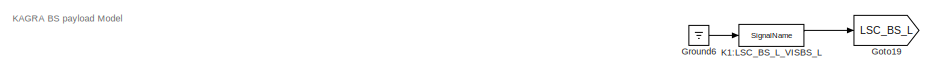
[diagram: root canvas - part 1/6, top left region]
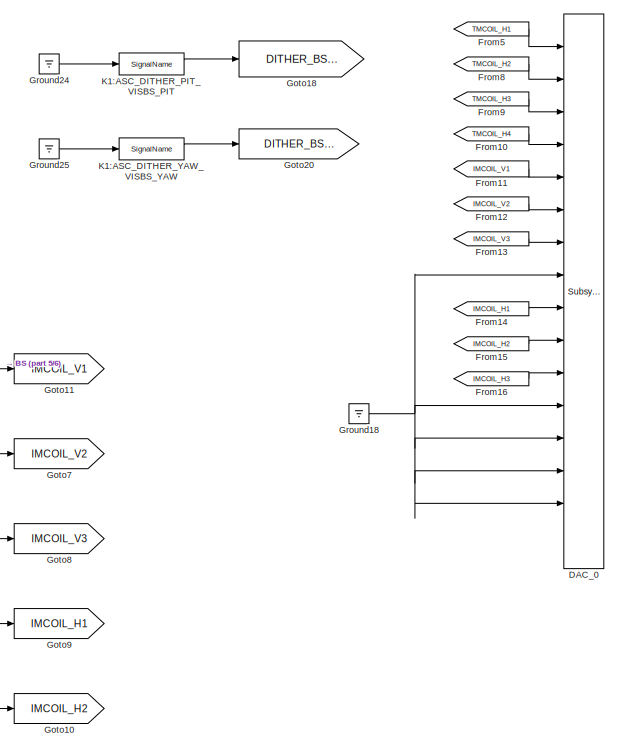
[diagram: root canvas - part 2/6, top right region]
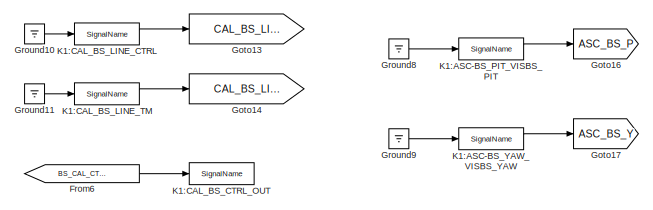
[diagram: root canvas - part 3/6, top center region]
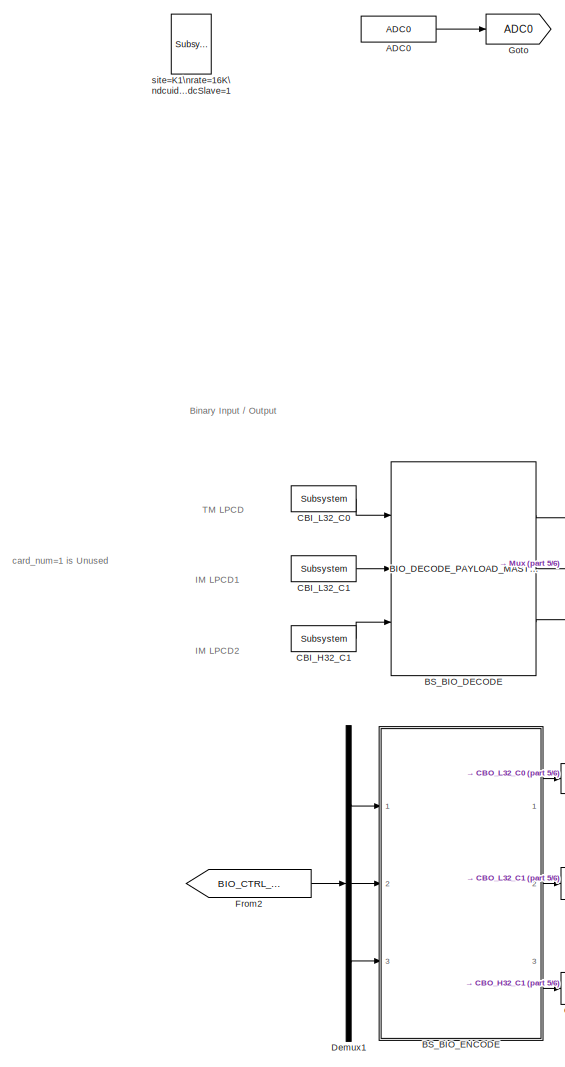
[diagram: root canvas - part 4/6, middle left region]
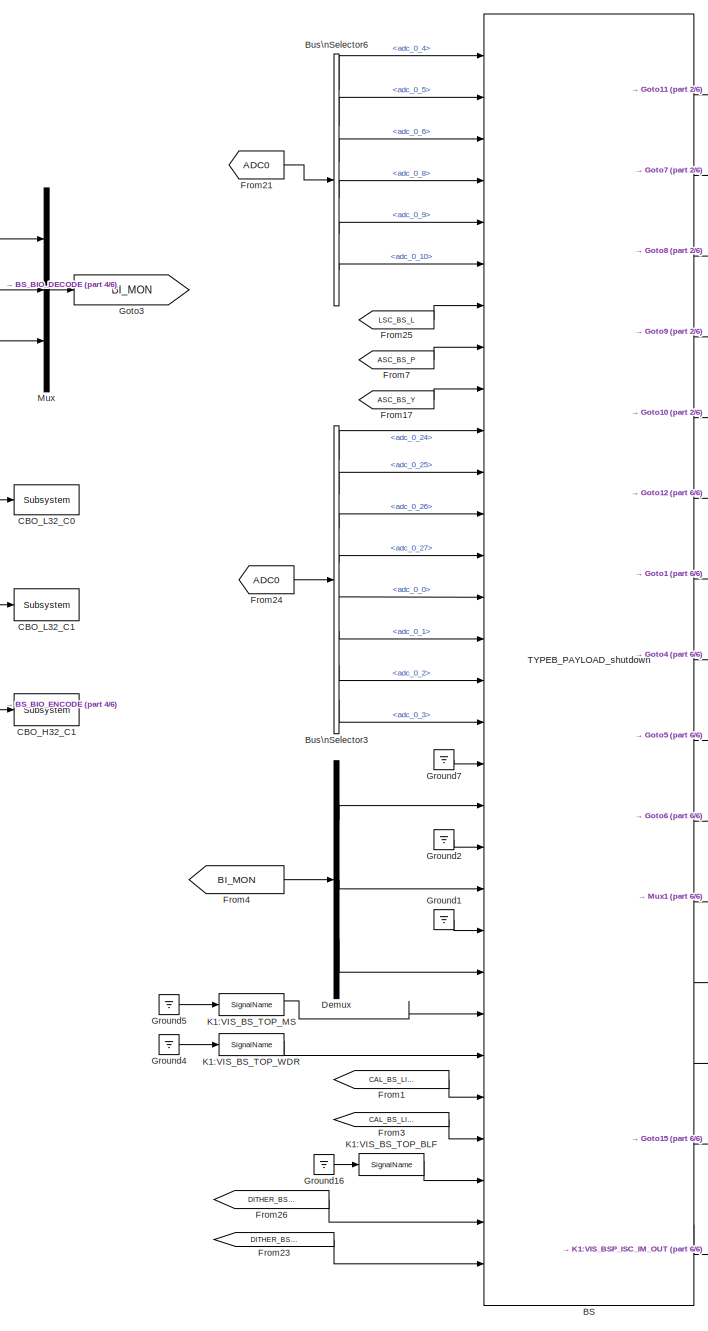
[diagram: root canvas - part 5/6, center side, full height]
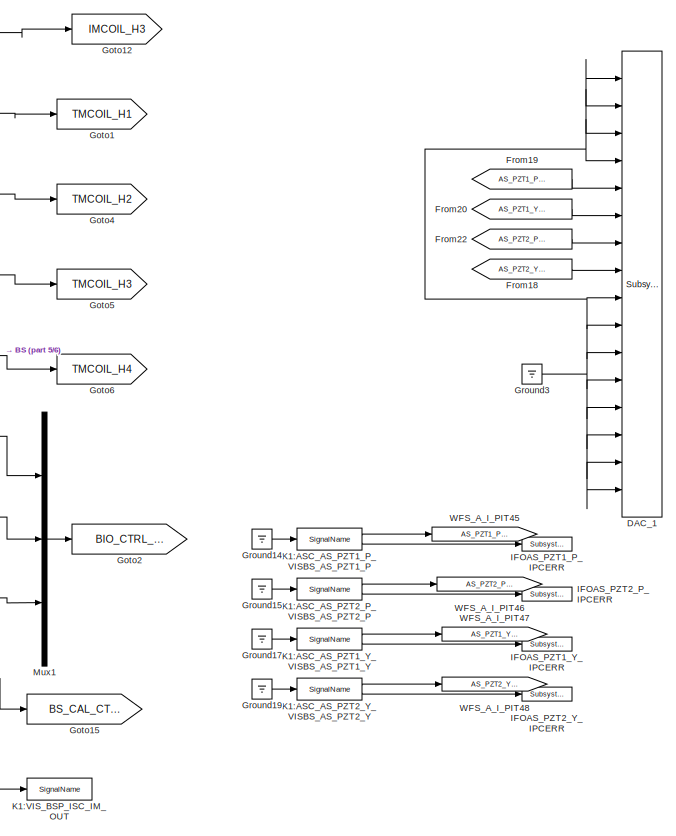
[diagram: root canvas - part 6/6, bottom right region]
MODEL k1visbsp
KIND model
BLOCK [Reference] ADC0  REF=cdsAdcx0/ADC0
  AttributesFormatString = %<Description>\\n%<Tag>
  Description = type-GSC_16AI64SSA\ncard_num=0
  Ports = [0, 1]
  SID = 271
  SourceBlock = cdsAdcx0/ADC0
  SourceType = SubSystem
  Tag = cdsAdc
BLOCK [Reference] BS  REF=TYPEB_MASTER/TYPEB_PAYLOAD_shutdown
  Ports = [30, 15]
  SID = 2206
  SourceBlock = TYPEB_MASTER/TYPEB_PAYLOAD_shutdown
  SourceType = SubSystem
BLOCK [Reference] BS_BIO_DECODE  REF=TYPEB_MASTER/BIO_DECODE_PAYLOAD_MASTER
  Ports = [3, 3]
  SID = 2204
  SourceBlock = TYPEB_MASTER/BIO_DECODE_PAYLOAD_MASTER
  SourceType = SubSystem
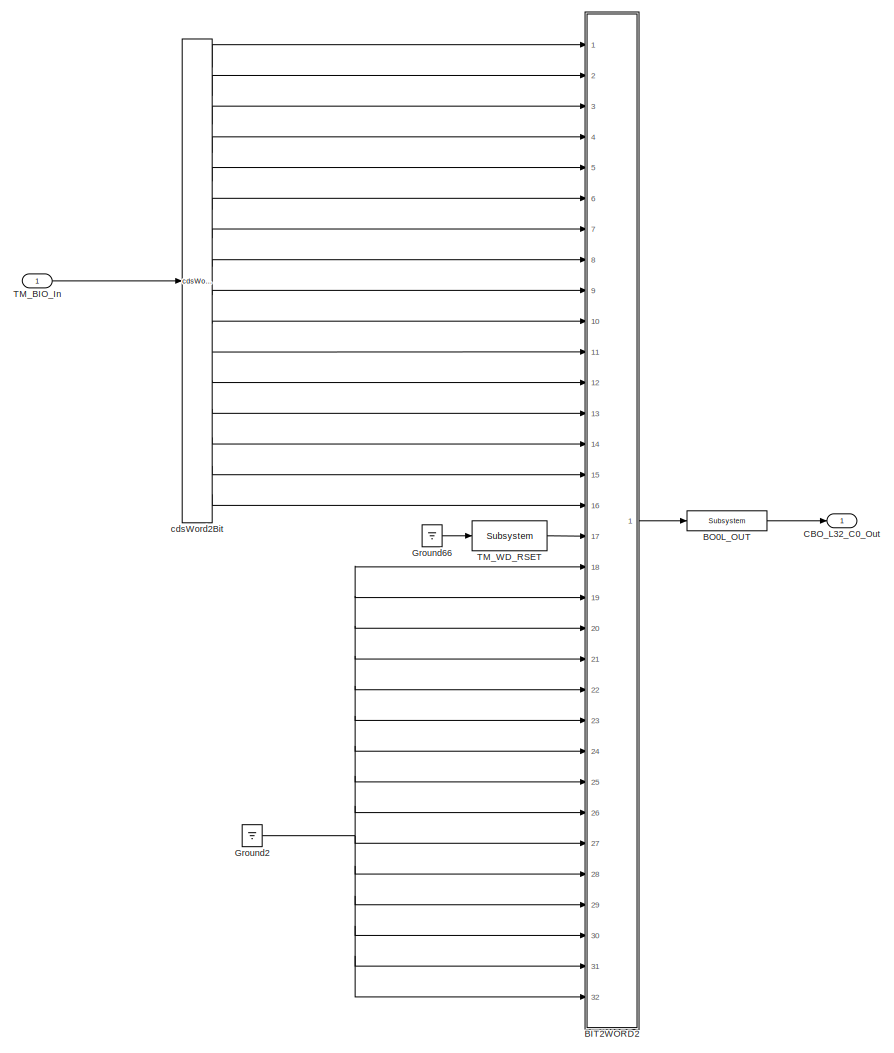
[diagram: BS_BIO_ENCODE - part 1/3, top left region]
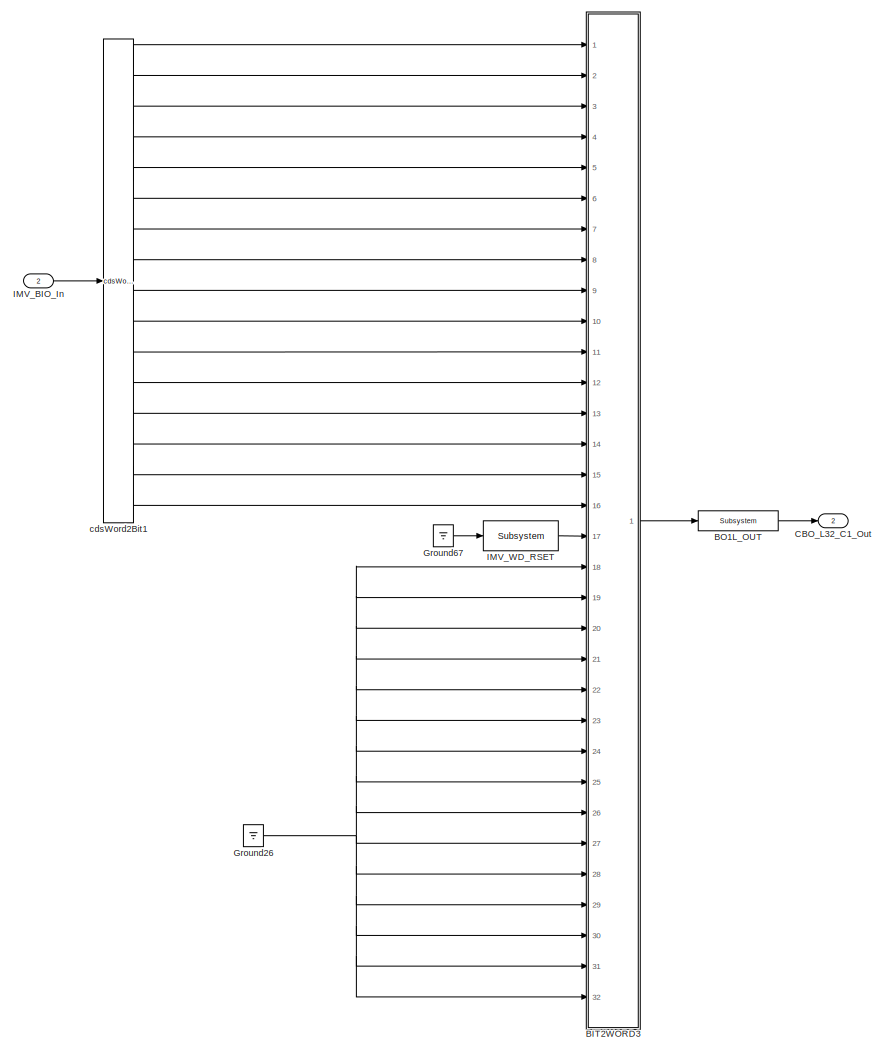
[diagram: BS_BIO_ENCODE - part 2/3, top right region]
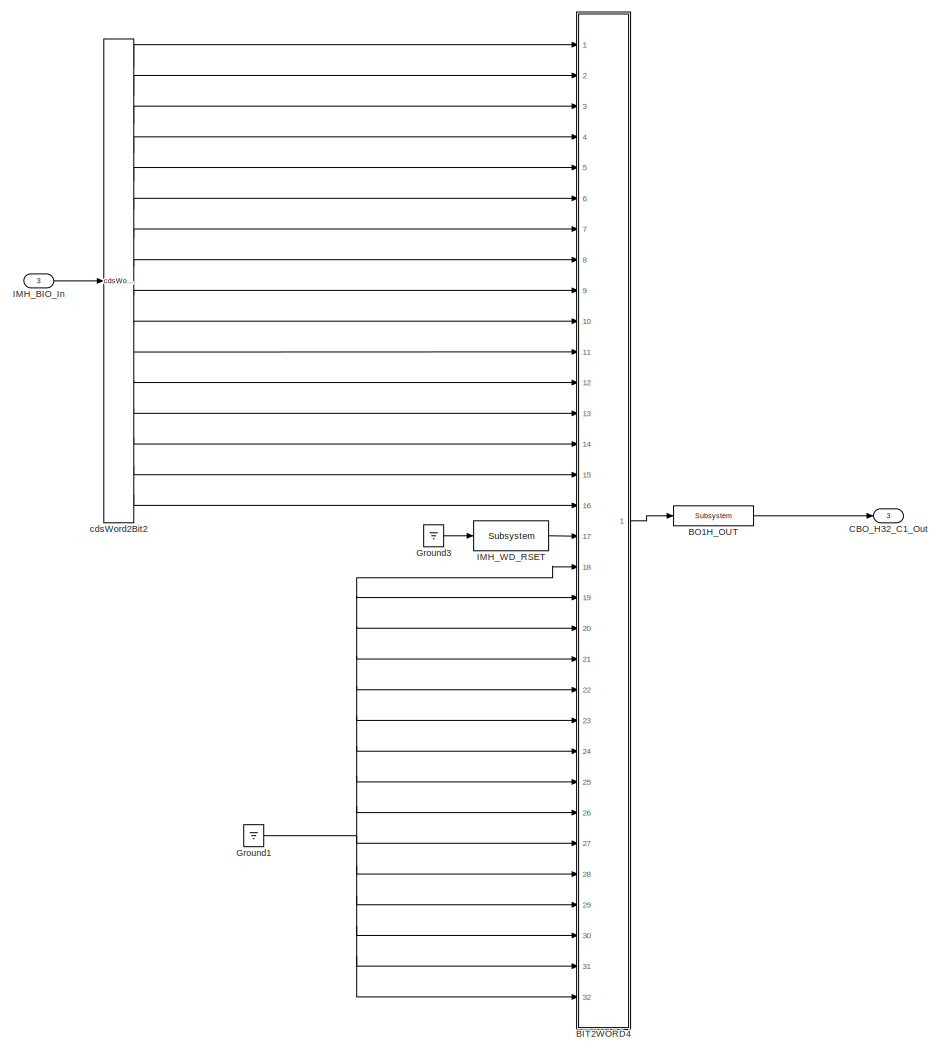
[diagram: BS_BIO_ENCODE - part 3/3, bottom left region]
BLOCK [SubSystem] BS_BIO_ENCODE
  AncestorBlock = TYPEB_MASTER/BIO_ENCODE_PAYLOAD_MASTER
  Ports = [3, 3]
  RequestExecContextInheritance = off
  SID = 2205
  Variant = off
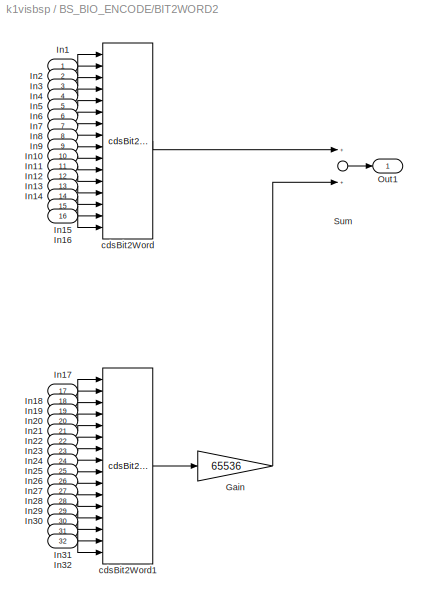
BLOCK [SubSystem] BS_BIO_ENCODE/BIT2WORD2
  Ports = [32, 1]
  RequestExecContextInheritance = off
  SID = 2205:1318
  Variant = off
BLOCK [Gain] BS_BIO_ENCODE/BIT2WORD2/Gain
  Gain = 65536
  OutDataTypeStr = Inherit: Inherit via internal rule
  ParamDataTypeStr = Inherit: Inherit via internal rule
  SID = 2205:1351
  SaturateOnIntegerOverflow = off
BLOCK [Inport] BS_BIO_ENCODE/BIT2WORD2/In1
  IconDisplay = Port number
  SID = 2205:1319
BLOCK [Inport] BS_BIO_ENCODE/BIT2WORD2/In10
  IconDisplay = Port number
  Port = 10
  SID = 2205:1328
BLOCK [Inport] BS_BIO_ENCODE/BIT2WORD2/In11
  IconDisplay = Port number
  Port = 11
  SID = 2205:1329
BLOCK [Inport] BS_BIO_ENCODE/BIT2WORD2/In12
  IconDisplay = Port number
  Port = 12
  SID = 2205:1330
BLOCK [Inport] BS_BIO_ENCODE/BIT2WORD2/In13
  IconDisplay = Port number
  Port = 13
  SID = 2205:1331
BLOCK [Inport] BS_BIO_ENCODE/BIT2WORD2/In14
  IconDisplay = Port number
  Port = 14
  SID = 2205:1332
BLOCK [Inport] BS_BIO_ENCODE/BIT2WORD2/In15
  IconDisplay = Port number
  Port = 15
  SID = 2205:1333
BLOCK [Inport] BS_BIO_ENCODE/BIT2WORD2/In16
  IconDisplay = Port number
  Port = 16
  SID = 2205:1334
BLOCK [Inport] BS_BIO_ENCODE/BIT2WORD2/In17
  IconDisplay = Port number
  Port = 17
  SID = 2205:1335
BLOCK [Inport] BS_BIO_ENCODE/BIT2WORD2/In18
  IconDisplay = Port number
  Port = 18
  SID = 2205:1336
BLOCK [Inport] BS_BIO_ENCODE/BIT2WORD2/In19
  IconDisplay = Port number
  Port = 19
  SID = 2205:1337
BLOCK [Inport] BS_BIO_ENCODE/BIT2WORD2/In2
  IconDisplay = Port number
  Port = 2
  SID = 2205:1320
BLOCK [Inport] BS_BIO_ENCODE/BIT2WORD2/In20
  IconDisplay = Port number
  Port = 20
  SID = 2205:1338
BLOCK [Inport] BS_BIO_ENCODE/BIT2WORD2/In21
  IconDisplay = Port number
  Port = 21
  SID = 2205:1339
BLOCK [Inport] BS_BIO_ENCODE/BIT2WORD2/In22
  IconDisplay = Port number
  Port = 22
  SID = 2205:1340
BLOCK [Inport] BS_BIO_ENCODE/BIT2WORD2/In23
  IconDisplay = Port number
  Port = 23
  SID = 2205:1341
BLOCK [Inport] BS_BIO_ENCODE/BIT2WORD2/In24
  IconDisplay = Port number
  Port = 24
  SID = 2205:1342
BLOCK [Inport] BS_BIO_ENCODE/BIT2WORD2/In25
  IconDisplay = Port number
  Port = 25
  SID = 2205:1343
BLOCK [Inport] BS_BIO_ENCODE/BIT2WORD2/In26
  IconDisplay = Port number
  Port = 26
  SID = 2205:1344
BLOCK [Inport] BS_BIO_ENCODE/BIT2WORD2/In27
  IconDisplay = Port number
  Port = 27
  SID = 2205:1345
BLOCK [Inport] BS_BIO_ENCODE/BIT2WORD2/In28
  IconDisplay = Port number
  Port = 28
  SID = 2205:1346
BLOCK [Inport] BS_BIO_ENCODE/BIT2WORD2/In29
  IconDisplay = Port number
  Port = 29
  SID = 2205:1347
BLOCK [Inport] BS_BIO_ENCODE/BIT2WORD2/In3
  IconDisplay = Port number
  Port = 3
  SID = 2205:1321
BLOCK [Inport] BS_BIO_ENCODE/BIT2WORD2/In30
  IconDisplay = Port number
  Port = 30
  SID = 2205:1348
BLOCK [Inport] BS_BIO_ENCODE/BIT2WORD2/In31
  IconDisplay = Port number
  Port = 31
  SID = 2205:1349
BLOCK [Inport] BS_BIO_ENCODE/BIT2WORD2/In32
  IconDisplay = Port number
  Port = 32
  SID = 2205:1350
BLOCK [Inport] BS_BIO_ENCODE/BIT2WORD2/In4
  IconDisplay = Port number
  Port = 4
  SID = 2205:1322
BLOCK [Inport] BS_BIO_ENCODE/BIT2WORD2/In5
  IconDisplay = Port number
  Port = 5
  SID = 2205:1323
BLOCK [Inport] BS_BIO_ENCODE/BIT2WORD2/In6
  IconDisplay = Port number
  Port = 6
  SID = 2205:1324
BLOCK [Inport] BS_BIO_ENCODE/BIT2WORD2/In7
  IconDisplay = Port number
  Port = 7
  SID = 2205:1325
BLOCK [Inport] BS_BIO_ENCODE/BIT2WORD2/In8
  IconDisplay = Port number
  Port = 8
  SID = 2205:1326
BLOCK [Inport] BS_BIO_ENCODE/BIT2WORD2/In9
  IconDisplay = Port number
  Port = 9
  SID = 2205:1327
BLOCK [Outport] BS_BIO_ENCODE/BIT2WORD2/Out1
  IconDisplay = Port number
  SID = 2205:1355
BLOCK [Sum] BS_BIO_ENCODE/BIT2WORD2/Sum
  InputSameDT = off
  OutDataTypeStr = Inherit: Inherit via internal rule
  Ports = [2, 1]
  SID = 2205:1352
  SaturateOnIntegerOverflow = off
BLOCK [Reference] BS_BIO_ENCODE/BIT2WORD2/cdsBit2Word  REF=cdsBit2Word/cdsBit2Word
  AttributesFormatString = %<Tag>
  Description = Forms single 16 bit integer from 16 0/1 inputs.
  Ports = [16, 1]
  SID = 2205:1353
  SourceBlock = cdsBit2Word/cdsBit2Word
  SourceType = SubSystem
  Tag = cdsBit2Word
BLOCK [Reference] BS_BIO_ENCODE/BIT2WORD2/cdsBit2Word1  REF=cdsBit2Word/cdsBit2Word
  AttributesFormatString = %<Tag>
  Description = Forms single 16 bit integer from 16 0/1 inputs.
  Ports = [16, 1]
  SID = 2205:1354
  SourceBlock = cdsBit2Word/cdsBit2Word
  SourceType = SubSystem
  Tag = cdsBit2Word
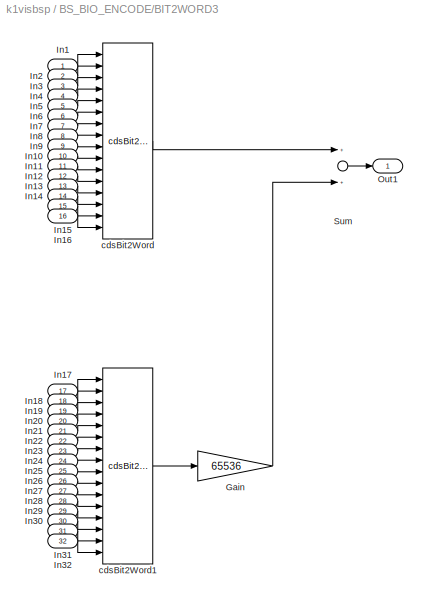
BLOCK [SubSystem] BS_BIO_ENCODE/BIT2WORD3
  Ports = [32, 1]
  RequestExecContextInheritance = off
  SID = 2205:1356
  Variant = off
BLOCK [Gain] BS_BIO_ENCODE/BIT2WORD3/Gain
  Gain = 65536
  OutDataTypeStr = Inherit: Inherit via internal rule
  ParamDataTypeStr = Inherit: Inherit via internal rule
  SID = 2205:1389
  SaturateOnIntegerOverflow = off
BLOCK [Inport] BS_BIO_ENCODE/BIT2WORD3/In1
  IconDisplay = Port number
  SID = 2205:1357
BLOCK [Inport] BS_BIO_ENCODE/BIT2WORD3/In10
  IconDisplay = Port number
  Port = 10
  SID = 2205:1366
BLOCK [Inport] BS_BIO_ENCODE/BIT2WORD3/In11
  IconDisplay = Port number
  Port = 11
  SID = 2205:1367
BLOCK [Inport] BS_BIO_ENCODE/BIT2WORD3/In12
  IconDisplay = Port number
  Port = 12
  SID = 2205:1368
BLOCK [Inport] BS_BIO_ENCODE/BIT2WORD3/In13
  IconDisplay = Port number
  Port = 13
  SID = 2205:1369
BLOCK [Inport] BS_BIO_ENCODE/BIT2WORD3/In14
  IconDisplay = Port number
  Port = 14
  SID = 2205:1370
BLOCK [Inport] BS_BIO_ENCODE/BIT2WORD3/In15
  IconDisplay = Port number
  Port = 15
  SID = 2205:1371
BLOCK [Inport] BS_BIO_ENCODE/BIT2WORD3/In16
  IconDisplay = Port number
  Port = 16
  SID = 2205:1372
BLOCK [Inport] BS_BIO_ENCODE/BIT2WORD3/In17
  IconDisplay = Port number
  Port = 17
  SID = 2205:1373
BLOCK [Inport] BS_BIO_ENCODE/BIT2WORD3/In18
  IconDisplay = Port number
  Port = 18
  SID = 2205:1374
BLOCK [Inport] BS_BIO_ENCODE/BIT2WORD3/In19
  IconDisplay = Port number
  Port = 19
  SID = 2205:1375
BLOCK [Inport] BS_BIO_ENCODE/BIT2WORD3/In2
  IconDisplay = Port number
  Port = 2
  SID = 2205:1358
BLOCK [Inport] BS_BIO_ENCODE/BIT2WORD3/In20
  IconDisplay = Port number
  Port = 20
  SID = 2205:1376
BLOCK [Inport] BS_BIO_ENCODE/BIT2WORD3/In21
  IconDisplay = Port number
  Port = 21
  SID = 2205:1377
BLOCK [Inport] BS_BIO_ENCODE/BIT2WORD3/In22
  IconDisplay = Port number
  Port = 22
  SID = 2205:1378
BLOCK [Inport] BS_BIO_ENCODE/BIT2WORD3/In23
  IconDisplay = Port number
  Port = 23
  SID = 2205:1379
BLOCK [Inport] BS_BIO_ENCODE/BIT2WORD3/In24
  IconDisplay = Port number
  Port = 24
  SID = 2205:1380
BLOCK [Inport] BS_BIO_ENCODE/BIT2WORD3/In25
  IconDisplay = Port number
  Port = 25
  SID = 2205:1381
BLOCK [Inport] BS_BIO_ENCODE/BIT2WORD3/In26
  IconDisplay = Port number
  Port = 26
  SID = 2205:1382
BLOCK [Inport] BS_BIO_ENCODE/BIT2WORD3/In27
  IconDisplay = Port number
  Port = 27
  SID = 2205:1383
BLOCK [Inport] BS_BIO_ENCODE/BIT2WORD3/In28
  IconDisplay = Port number
  Port = 28
  SID = 2205:1384
BLOCK [Inport] BS_BIO_ENCODE/BIT2WORD3/In29
  IconDisplay = Port number
  Port = 29
  SID = 2205:1385
BLOCK [Inport] BS_BIO_ENCODE/BIT2WORD3/In3
  IconDisplay = Port number
  Port = 3
  SID = 2205:1359
BLOCK [Inport] BS_BIO_ENCODE/BIT2WORD3/In30
  IconDisplay = Port number
  Port = 30
  SID = 2205:1386
BLOCK [Inport] BS_BIO_ENCODE/BIT2WORD3/In31
  IconDisplay = Port number
  Port = 31
  SID = 2205:1387
BLOCK [Inport] BS_BIO_ENCODE/BIT2WORD3/In32
  IconDisplay = Port number
  Port = 32
  SID = 2205:1388
BLOCK [Inport] BS_BIO_ENCODE/BIT2WORD3/In4
  IconDisplay = Port number
  Port = 4
  SID = 2205:1360
BLOCK [Inport] BS_BIO_ENCODE/BIT2WORD3/In5
  IconDisplay = Port number
  Port = 5
  SID = 2205:1361
BLOCK [Inport] BS_BIO_ENCODE/BIT2WORD3/In6
  IconDisplay = Port number
  Port = 6
  SID = 2205:1362
BLOCK [Inport] BS_BIO_ENCODE/BIT2WORD3/In7
  IconDisplay = Port number
  Port = 7
  SID = 2205:1363
BLOCK [Inport] BS_BIO_ENCODE/BIT2WORD3/In8
  IconDisplay = Port number
  Port = 8
  SID = 2205:1364
BLOCK [Inport] BS_BIO_ENCODE/BIT2WORD3/In9
  IconDisplay = Port number
  Port = 9
  SID = 2205:1365
BLOCK [Outport] BS_BIO_ENCODE/BIT2WORD3/Out1
  IconDisplay = Port number
  SID = 2205:1393
BLOCK [Sum] BS_BIO_ENCODE/BIT2WORD3/Sum
  InputSameDT = off
  OutDataTypeStr = Inherit: Inherit via internal rule
  Ports = [2, 1]
  SID = 2205:1390
  SaturateOnIntegerOverflow = off
BLOCK [Reference] BS_BIO_ENCODE/BIT2WORD3/cdsBit2Word  REF=cdsBit2Word/cdsBit2Word
  AttributesFormatString = %<Tag>
  Description = Forms single 16 bit integer from 16 0/1 inputs.
  Ports = [16, 1]
  SID = 2205:1391
  SourceBlock = cdsBit2Word/cdsBit2Word
  SourceType = SubSystem
  Tag = cdsBit2Word
BLOCK [Reference] BS_BIO_ENCODE/BIT2WORD3/cdsBit2Word1  REF=cdsBit2Word/cdsBit2Word
  AttributesFormatString = %<Tag>
  Description = Forms single 16 bit integer from 16 0/1 inputs.
  Ports = [16, 1]
  SID = 2205:1392
  SourceBlock = cdsBit2Word/cdsBit2Word
  SourceType = SubSystem
  Tag = cdsBit2Word
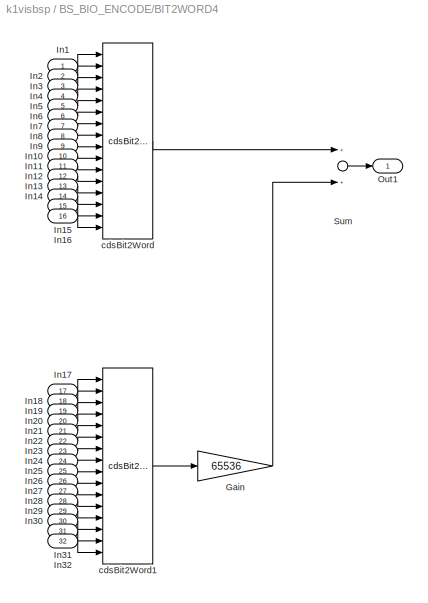
BLOCK [SubSystem] BS_BIO_ENCODE/BIT2WORD4
  Ports = [32, 1]
  RequestExecContextInheritance = off
  SID = 2205:1394
  Variant = off
BLOCK [Gain] BS_BIO_ENCODE/BIT2WORD4/Gain
  Gain = 65536
  OutDataTypeStr = Inherit: Inherit via internal rule
  ParamDataTypeStr = Inherit: Inherit via internal rule
  SID = 2205:1427
  SaturateOnIntegerOverflow = off
BLOCK [Inport] BS_BIO_ENCODE/BIT2WORD4/In1
  IconDisplay = Port number
  SID = 2205:1395
BLOCK [Inport] BS_BIO_ENCODE/BIT2WORD4/In10
  IconDisplay = Port number
  Port = 10
  SID = 2205:1404
BLOCK [Inport] BS_BIO_ENCODE/BIT2WORD4/In11
  IconDisplay = Port number
  Port = 11
  SID = 2205:1405
BLOCK [Inport] BS_BIO_ENCODE/BIT2WORD4/In12
  IconDisplay = Port number
  Port = 12
  SID = 2205:1406
BLOCK [Inport] BS_BIO_ENCODE/BIT2WORD4/In13
  IconDisplay = Port number
  Port = 13
  SID = 2205:1407
BLOCK [Inport] BS_BIO_ENCODE/BIT2WORD4/In14
  IconDisplay = Port number
  Port = 14
  SID = 2205:1408
BLOCK [Inport] BS_BIO_ENCODE/BIT2WORD4/In15
  IconDisplay = Port number
  Port = 15
  SID = 2205:1409
BLOCK [Inport] BS_BIO_ENCODE/BIT2WORD4/In16
  IconDisplay = Port number
  Port = 16
  SID = 2205:1410
BLOCK [Inport] BS_BIO_ENCODE/BIT2WORD4/In17
  IconDisplay = Port number
  Port = 17
  SID = 2205:1411
BLOCK [Inport] BS_BIO_ENCODE/BIT2WORD4/In18
  IconDisplay = Port number
  Port = 18
  SID = 2205:1412
BLOCK [Inport] BS_BIO_ENCODE/BIT2WORD4/In19
  IconDisplay = Port number
  Port = 19
  SID = 2205:1413
BLOCK [Inport] BS_BIO_ENCODE/BIT2WORD4/In2
  IconDisplay = Port number
  Port = 2
  SID = 2205:1396
BLOCK [Inport] BS_BIO_ENCODE/BIT2WORD4/In20
  IconDisplay = Port number
  Port = 20
  SID = 2205:1414
BLOCK [Inport] BS_BIO_ENCODE/BIT2WORD4/In21
  IconDisplay = Port number
  Port = 21
  SID = 2205:1415
BLOCK [Inport] BS_BIO_ENCODE/BIT2WORD4/In22
  IconDisplay = Port number
  Port = 22
  SID = 2205:1416
BLOCK [Inport] BS_BIO_ENCODE/BIT2WORD4/In23
  IconDisplay = Port number
  Port = 23
  SID = 2205:1417
BLOCK [Inport] BS_BIO_ENCODE/BIT2WORD4/In24
  IconDisplay = Port number
  Port = 24
  SID = 2205:1418
BLOCK [Inport] BS_BIO_ENCODE/BIT2WORD4/In25
  IconDisplay = Port number
  Port = 25
  SID = 2205:1419
BLOCK [Inport] BS_BIO_ENCODE/BIT2WORD4/In26
  IconDisplay = Port number
  Port = 26
  SID = 2205:1420
BLOCK [Inport] BS_BIO_ENCODE/BIT2WORD4/In27
  IconDisplay = Port number
  Port = 27
  SID = 2205:1421
BLOCK [Inport] BS_BIO_ENCODE/BIT2WORD4/In28
  IconDisplay = Port number
  Port = 28
  SID = 2205:1422
BLOCK [Inport] BS_BIO_ENCODE/BIT2WORD4/In29
  IconDisplay = Port number
  Port = 29
  SID = 2205:1423
BLOCK [Inport] BS_BIO_ENCODE/BIT2WORD4/In3
  IconDisplay = Port number
  Port = 3
  SID = 2205:1397
BLOCK [Inport] BS_BIO_ENCODE/BIT2WORD4/In30
  IconDisplay = Port number
  Port = 30
  SID = 2205:1424
BLOCK [Inport] BS_BIO_ENCODE/BIT2WORD4/In31
  IconDisplay = Port number
  Port = 31
  SID = 2205:1425
BLOCK [Inport] BS_BIO_ENCODE/BIT2WORD4/In32
  IconDisplay = Port number
  Port = 32
  SID = 2205:1426
BLOCK [Inport] BS_BIO_ENCODE/BIT2WORD4/In4
  IconDisplay = Port number
  Port = 4
  SID = 2205:1398
BLOCK [Inport] BS_BIO_ENCODE/BIT2WORD4/In5
  IconDisplay = Port number
  Port = 5
  SID = 2205:1399
BLOCK [Inport] BS_BIO_ENCODE/BIT2WORD4/In6
  IconDisplay = Port number
  Port = 6
  SID = 2205:1400
BLOCK [Inport] BS_BIO_ENCODE/BIT2WORD4/In7
  IconDisplay = Port number
  Port = 7
  SID = 2205:1401
BLOCK [Inport] BS_BIO_ENCODE/BIT2WORD4/In8
  IconDisplay = Port number
  Port = 8
  SID = 2205:1402
BLOCK [Inport] BS_BIO_ENCODE/BIT2WORD4/In9
  IconDisplay = Port number
  Port = 9
  SID = 2205:1403
BLOCK [Outport] BS_BIO_ENCODE/BIT2WORD4/Out1
  IconDisplay = Port number
  SID = 2205:1431
BLOCK [Sum] BS_BIO_ENCODE/BIT2WORD4/Sum
  InputSameDT = off
  OutDataTypeStr = Inherit: Inherit via internal rule
  Ports = [2, 1]
  SID = 2205:1428
  SaturateOnIntegerOverflow = off
BLOCK [Reference] BS_BIO_ENCODE/BIT2WORD4/cdsBit2Word  REF=cdsBit2Word/cdsBit2Word
  AttributesFormatString = %<Tag>
  Description = Forms single 16 bit integer from 16 0/1 inputs.
  Ports = [16, 1]
  SID = 2205:1429
  SourceBlock = cdsBit2Word/cdsBit2Word
  SourceType = SubSystem
  Tag = cdsBit2Word
BLOCK [Reference] BS_BIO_ENCODE/BIT2WORD4/cdsBit2Word1  REF=cdsBit2Word/cdsBit2Word
  AttributesFormatString = %<Tag>
  Description = Forms single 16 bit integer from 16 0/1 inputs.
  Ports = [16, 1]
  SID = 2205:1430
  SourceBlock = cdsBit2Word/cdsBit2Word
  SourceType = SubSystem
  Tag = cdsBit2Word
BLOCK [Reference] BS_BIO_ENCODE/BO0L_OUT  REF=cdsEpicsOut/Subsystem
  AttributesFormatString = %<Tag>
  Description = Purpose:                                          \nOutput a FE signal to an EPICS channel.           \n                                                  \nOperation:                                        \nTakes input value and passes it to EPICS record.  \n                                                  \nUsage:                                            \nName the part with the desired EPICS...<+14ch>  <repeated x7 — deduplicated; at blocks: BO0L_OUT, BO1H_OUT, BO1L_OUT, IFOAS_PZT1_P_IPCERR, IFOAS_PZT1_Y_IPCERR, IFOAS_PZT2_P_IPCERR, IFOAS_PZT2_Y_IPCERR>
  Ports = [1, 1]
  SID = 2205:1432
  SourceBlock = cdsEpicsOut/Subsystem
  SourceType = SubSystem
  Tag = cdsEpicsOutput
BLOCK [Reference] BS_BIO_ENCODE/BO1H_OUT  REF=cdsEpicsOut/Subsystem
  AttributesFormatString = %<Tag>
  Ports = [1, 1]
  SID = 2205:1434
  SourceBlock = cdsEpicsOut/Subsystem
  SourceType = SubSystem
  Tag = cdsEpicsOutput
BLOCK [Reference] BS_BIO_ENCODE/BO1L_OUT  REF=cdsEpicsOut/Subsystem
  AttributesFormatString = %<Tag>
  Ports = [1, 1]
  SID = 2205:1433
  SourceBlock = cdsEpicsOut/Subsystem
  SourceType = SubSystem
  Tag = cdsEpicsOutput
BLOCK [Outport] BS_BIO_ENCODE/CBO_H32_C1_Out
  IconDisplay = Port number
  Port = 3
  SID = 2205:1449
BLOCK [Outport] BS_BIO_ENCODE/CBO_L32_C0_Out
  IconDisplay = Port number
  SID = 2205:1447
BLOCK [Outport] BS_BIO_ENCODE/CBO_L32_C1_Out
  IconDisplay = Port number
  Port = 2
  SID = 2205:1448
BLOCK [Ground] BS_BIO_ENCODE/Ground1
  SID = 2205:1435
BLOCK [Ground] BS_BIO_ENCODE/Ground2
  SID = 2205:1436
BLOCK [Ground] BS_BIO_ENCODE/Ground26
  SID = 2205:1437
BLOCK [Ground] BS_BIO_ENCODE/Ground3
  SID = 2205:1438
BLOCK [Ground] BS_BIO_ENCODE/Ground66
  SID = 2205:1439
BLOCK [Ground] BS_BIO_ENCODE/Ground67
  SID = 2205:1440
BLOCK [Inport] BS_BIO_ENCODE/IMH_BIO_In
  IconDisplay = Port number
  Port = 3
  SID = 2205:1317
BLOCK [Reference] BS_BIO_ENCODE/IMH_WD_RSET  REF=cdsEpicsBinIn/Subsystem
  AttributesFormatString = %<Tag>
  Description = Purpose:                                                                            \nCreate an EPICS binary (0 or 1) input channel to the FE realtime controls.          \n                                                                                    \nOperation:                                                                          \nOutputs value from an EPICS ai record. Value is binary i...<+252ch>  <repeated x3 — deduplicated; at blocks: IMH_WD_RSET, IMV_WD_RSET, TM_WD_RSET>
  Ports = [1, 1]
  SID = 2205:1441
  SourceBlock = cdsEpicsBinIn/Subsystem
  SourceType = SubSystem
  Tag = cdsEpicsBinIn
BLOCK [Inport] BS_BIO_ENCODE/IMV_BIO_In
  IconDisplay = Port number
  Port = 2
  SID = 2205:1316
BLOCK [Reference] BS_BIO_ENCODE/IMV_WD_RSET  REF=cdsEpicsBinIn/Subsystem
  AttributesFormatString = %<Tag>
  Ports = [1, 1]
  SID = 2205:1442
  SourceBlock = cdsEpicsBinIn/Subsystem
  SourceType = SubSystem
  Tag = cdsEpicsBinIn
BLOCK [Inport] BS_BIO_ENCODE/TM_BIO_In
  IconDisplay = Port number
  SID = 2205:1315
BLOCK [Reference] BS_BIO_ENCODE/TM_WD_RSET  REF=cdsEpicsBinIn/Subsystem
  AttributesFormatString = %<Tag>
  Ports = [1, 1]
  SID = 2205:1443
  SourceBlock = cdsEpicsBinIn/Subsystem
  SourceType = SubSystem
  Tag = cdsEpicsBinIn
BLOCK [Reference] BS_BIO_ENCODE/cdsWord2Bit  REF=cdsWord2Bit/cdsWord2Bit
  AttributesFormatString = cdsWord2Bit
  Description = Generate 16 0/1 outputs from single 16-bit integer input
  Ports = [1, 16]
  SID = 2205:1444
  SourceBlock = cdsWord2Bit/cdsWord2Bit
  SourceType = SubSystem
  Tag = cdsWord2Bit
BLOCK [Reference] BS_BIO_ENCODE/cdsWord2Bit1  REF=cdsWord2Bit/cdsWord2Bit
  AttributesFormatString = cdsWord2Bit
  Description = Generate 16 0/1 outputs from single 16-bit integer input
  Ports = [1, 16]
  SID = 2205:1445
  SourceBlock = cdsWord2Bit/cdsWord2Bit
  SourceType = SubSystem
  Tag = cdsWord2Bit
BLOCK [Reference] BS_BIO_ENCODE/cdsWord2Bit2  REF=cdsWord2Bit/cdsWord2Bit
  AttributesFormatString = cdsWord2Bit
  Description = Generate 16 0/1 outputs from single 16-bit integer input
  Ports = [1, 16]
  SID = 2205:1446
  SourceBlock = cdsWord2Bit/cdsWord2Bit
  SourceType = SubSystem
  Tag = cdsWord2Bit
BLOCK [BusSelector] Bus\nSelector3
  AttributesFormatString = %<Description>
  Description = ADC Selector
  OutputSignals = adc_0_24,adc_0_25,adc_0_26,adc_0_27,adc_0_0,adc_0_1,adc_0_2,adc_0_3
  Ports = [1, 8]
  SID = 275
BLOCK [BusSelector] Bus\nSelector6
  AttributesFormatString = %<Description>
  Description = ADC Selector
  OutputSignals = adc_0_4,adc_0_5,adc_0_6,adc_0_8,adc_0_9,adc_0_10
  Ports = [1, 6]
  SID = 273
BLOCK [Reference] CBI_H32_C1  REF=cdsCDI64/Subsystem
  AttributesFormatString = %<Tag>\\n%<Description>
  Description = card_num=3
  Ports = [0, 1]
  SID = 2125
  SourceBlock = cdsCDI64/Subsystem
  SourceType = SubSystem
  Tag = cdsCDI64
BLOCK [Reference] CBI_L32_C0  REF=cdsCDI64/Subsystem
  AttributesFormatString = %<Tag>\\n%<Description>
  Description = card_num=0
  Ports = [0, 1]
  SID = 2126
  SourceBlock = cdsCDI64/Subsystem
  SourceType = SubSystem
  Tag = cdsCDI64
BLOCK [Reference] CBI_L32_C1  REF=cdsCDI64/Subsystem
  AttributesFormatString = %<Tag>\\n%<Description>
  Description = card_num=2
  Ports = [0, 1]
  SID = 2127
  SourceBlock = cdsCDI64/Subsystem
  SourceType = SubSystem
  Tag = cdsCDI64
BLOCK [Reference] CBO_H32_C1  REF=cdsCDO64/Subsystem
  AttributesFormatString = %<Tag>\\n%<Description>
  Description = card_num=3
  Ports = [1]
  SID = 2130
  SourceBlock = cdsCDO64/Subsystem
  SourceType = SubSystem
  Tag = cdsCDO64
BLOCK [Reference] CBO_L32_C0  REF=cdsCDO64/Subsystem
  AttributesFormatString = %<Tag>\\n%<Description>
  Description = card_num=0
  Ports = [1]
  SID = 2131
  SourceBlock = cdsCDO64/Subsystem
  SourceType = SubSystem
  Tag = cdsCDO64
BLOCK [Reference] CBO_L32_C1  REF=cdsCDO64/Subsystem
  AttributesFormatString = %<Tag>\\n%<Description>
  Description = card_num=2
  Ports = [1]
  SID = 2132
  SourceBlock = cdsCDO64/Subsystem
  SourceType = SubSystem
  Tag = cdsCDO64
BLOCK [Reference] DAC_0  REF=dac/Subsystem  (lib defined in slx_40ef132df75b, slx_b7657ccccc5b, +4 more)
  AttributesFormatString = %<Description>
  Description = type=GSC_16AO16,\ncard_num=0
  Ports = [16]
  SID = 350
  SourceBlock = dac/Subsystem
  SourceType = SubSystem
BLOCK [Reference] DAC_1  REF=dac/Subsystem  (lib defined in slx_40ef132df75b, slx_b7657ccccc5b, +4 more)
  AttributesFormatString = %<Description>
  Description = type=GSC_16AO16,\ncard_num=1
  Ports = [16]
  SID = 536
  SourceBlock = dac/Subsystem
  SourceType = SubSystem
BLOCK [Demux] Demux
  DisplayOption = bar
  Outputs = 3
  Ports = [1, 3]
  SID = 2148
BLOCK [Demux] Demux1
  DisplayOption = bar
  Outputs = 3
  Ports = [1, 3]
  SID = 2135
BLOCK [From] From1
  GotoTag = CAL_BS_LINE_CTRL
  SID = 2173
BLOCK [From] From10
  GotoTag = TMCOIL_H4
  SID = 351
BLOCK [From] From11
  GotoTag = IMCOIL_V1
  SID = 352
BLOCK [From] From12
  GotoTag = IMCOIL_V2
  SID = 353
BLOCK [From] From13
  GotoTag = IMCOIL_V3
  SID = 354
BLOCK [From] From14
  GotoTag = IMCOIL_H1
  SID = 355
BLOCK [From] From15
  GotoTag = IMCOIL_H2
  SID = 356
BLOCK [From] From16
  GotoTag = IMCOIL_H3
  SID = 357
BLOCK [From] From17
  GotoTag = ASC_BS_Y
  SID = 2225
BLOCK [From] From18
  GotoTag = AS_PZT2_Y_DC
  SID = 2249
BLOCK [From] From19
  GotoTag = AS_PZT1_P_DC
  SID = 2250
BLOCK [From] From2
  GotoTag = BIO_CTRL_OUT
  SID = 2136
BLOCK [From] From20
  GotoTag = AS_PZT1_Y_DC
  SID = 2251
BLOCK [From] From21
  GotoTag = ADC0
  SID = 1851
BLOCK [From] From22
  GotoTag = AS_PZT2_P_DC
  SID = 2252
BLOCK [From] From23
  GotoTag = DITHER_BS_Y
  SID = 2270
BLOCK [From] From24
  GotoTag = ADC0
  SID = 1853
BLOCK [From] From25
  GotoTag = LSC_BS_L
  SID = 1862
BLOCK [From] From26
  GotoTag = DITHER_BS_P
  SID = 2271
BLOCK [From] From3
  GotoTag = CAL_BS_LINE_TM
  SID = 2174
BLOCK [From] From4
  GotoTag = BI_MON
  SID = 2149
BLOCK [From] From5
  GotoTag = TMCOIL_H1
  SID = 359
BLOCK [From] From6
  GotoTag = BS_CAL_CTRL_OUT
  SID = 2178
BLOCK [From] From7
  GotoTag = ASC_BS_P
  SID = 2224
BLOCK [From] From8
  GotoTag = TMCOIL_H2
  SID = 360
BLOCK [From] From9
  GotoTag = TMCOIL_H3
  SID = 361
BLOCK [Goto] Goto
  GotoTag = ADC0
  SID = 272
BLOCK [Goto] Goto1
  GotoTag = TMCOIL_H1
  SID = 364
BLOCK [Goto] Goto10
  GotoTag = IMCOIL_H2
  SID = 368
BLOCK [Goto] Goto11
  GotoTag = IMCOIL_V1
  SID = 369
BLOCK [Goto] Goto12
  GotoTag = IMCOIL_H3
  SID = 370
BLOCK [Goto] Goto13
  GotoTag = CAL_BS_LINE_CTRL
  SID = 2167
BLOCK [Goto] Goto14
  GotoTag = CAL_BS_LINE_TM
  SID = 2170
BLOCK [Goto] Goto15
  GotoTag = BS_CAL_CTRL_OUT
  SID = 2177
BLOCK [Goto] Goto16
  GotoTag = ASC_BS_P
  SID = 2216
BLOCK [Goto] Goto17
  GotoTag = ASC_BS_Y
  SID = 2219
BLOCK [Goto] Goto18
  GotoTag = DITHER_BS_P
  SID = 2259
BLOCK [Goto] Goto19
  GotoTag = LSC_BS_L
  SID = 1861
BLOCK [Goto] Goto2
  GotoTag = BIO_CTRL_OUT
  SID = 2146
BLOCK [Goto] Goto20
  GotoTag = DITHER_BS_Y
  SID = 2260
BLOCK [Goto] Goto3
  GotoTag = BI_MON
  SID = 2137
BLOCK [Goto] Goto4
  GotoTag = TMCOIL_H2
  SID = 365
BLOCK [Goto] Goto5
  GotoTag = TMCOIL_H3
  SID = 366
BLOCK [Goto] Goto6
  GotoTag = TMCOIL_H4
  SID = 367
BLOCK [Goto] Goto7
  GotoTag = IMCOIL_V2
  SID = 371
BLOCK [Goto] Goto8
  GotoTag = IMCOIL_V3
  SID = 372
BLOCK [Goto] Goto9
  GotoTag = IMCOIL_H1
  SID = 373
BLOCK [Ground] Ground1
  SID = 2152
BLOCK [Ground] Ground10
  SID = 2168
BLOCK [Ground] Ground11
  SID = 2171
BLOCK [Ground] Ground14
  SID = 2233
BLOCK [Ground] Ground15
  SID = 2234
BLOCK [Ground] Ground16
  SID = 2207
BLOCK [Ground] Ground17
  SID = 2235
BLOCK [Ground] Ground18
  SID = 362
BLOCK [Ground] Ground19
  SID = 2236
BLOCK [Ground] Ground2
  SID = 2153
BLOCK [Ground] Ground24
  SID = 2266
BLOCK [Ground] Ground25
  SID = 2267
BLOCK [Ground] Ground3
  SID = 537
BLOCK [Ground] Ground4
  SID = 2160
BLOCK [Ground] Ground5
  SID = 2162
BLOCK [Ground] Ground6
  SID = 1860
BLOCK [Ground] Ground7
  SID = 2151
BLOCK [Ground] Ground8
  SID = 2217
BLOCK [Ground] Ground9
  SID = 2220
BLOCK [Reference] IFOAS_PZT1_P_IPCERR  REF=cdsEpicsOut/Subsystem
  AttributesFormatString = %<Tag>
  Ports = [1, 1]
  SID = 2237
  SourceBlock = cdsEpicsOut/Subsystem
  SourceType = SubSystem
  Tag = cdsEpicsOutput
BLOCK [Reference] IFOAS_PZT1_Y_IPCERR  REF=cdsEpicsOut/Subsystem
  AttributesFormatString = %<Tag>
  Ports = [1, 1]
  SID = 2238
  SourceBlock = cdsEpicsOut/Subsystem
  SourceType = SubSystem
  Tag = cdsEpicsOutput
BLOCK [Reference] IFOAS_PZT2_P_IPCERR  REF=cdsEpicsOut/Subsystem
  AttributesFormatString = %<Tag>
  Ports = [1, 1]
  SID = 2239
  SourceBlock = cdsEpicsOut/Subsystem
  SourceType = SubSystem
  Tag = cdsEpicsOutput
BLOCK [Reference] IFOAS_PZT2_Y_IPCERR  REF=cdsEpicsOut/Subsystem
  AttributesFormatString = %<Tag>
  Ports = [1, 1]
  SID = 2240
  SourceBlock = cdsEpicsOut/Subsystem
  SourceType = SubSystem
  Tag = cdsEpicsOutput
BLOCK [Reference] K1:ASC-BS_PIT_VISBS_PIT  REF=cdsIPCx/SignalName
  AttributesFormatString = %<Tag>
  Description = Inter-Process Communication via PCI Express network.
  Ports = [1, 2]
  SID = 2230
  SourceBlock = cdsIPCx/SignalName
  SourceType = SubSystem
  Tag = cdsIPCx_PCIE
BLOCK [Reference] K1:ASC-BS_YAW_VISBS_YAW  REF=cdsIPCx/SignalName
  AttributesFormatString = %<Tag>
  Description = Inter-Process Communication via PCI Express network.
  Ports = [1, 2]
  SID = 2232
  SourceBlock = cdsIPCx/SignalName
  SourceType = SubSystem
  Tag = cdsIPCx_PCIE
BLOCK [Reference] K1:ASC_AS_PZT1_P_VISBS_AS_PZT1_P  REF=cdsIPCx/SignalName
  AttributesFormatString = %<Tag>
  Description = Inter-Process Communication via PCI Express network.
  Ports = [1, 2]
  SID = 2241
  SourceBlock = cdsIPCx/SignalName
  SourceType = SubSystem
  Tag = cdsIPCx_PCIE
BLOCK [Reference] K1:ASC_AS_PZT1_Y_VISBS_AS_PZT1_Y  REF=cdsIPCx/SignalName
  AttributesFormatString = %<Tag>
  Description = Inter-Process Communication via PCI Express network.
  Ports = [1, 2]
  SID = 2242
  SourceBlock = cdsIPCx/SignalName
  SourceType = SubSystem
  Tag = cdsIPCx_PCIE
BLOCK [Reference] K1:ASC_AS_PZT2_P_VISBS_AS_PZT2_P  REF=cdsIPCx/SignalName
  AttributesFormatString = %<Tag>
  Description = Inter-Process Communication via PCI Express network.
  Ports = [1, 2]
  SID = 2243
  SourceBlock = cdsIPCx/SignalName
  SourceType = SubSystem
  Tag = cdsIPCx_PCIE
BLOCK [Reference] K1:ASC_AS_PZT2_Y_VISBS_AS_PZT2_Y  REF=cdsIPCx/SignalName
  AttributesFormatString = %<Tag>
  Description = Inter-Process Communication via PCI Express network.
  Ports = [1, 2]
  SID = 2244
  SourceBlock = cdsIPCx/SignalName
  SourceType = SubSystem
  Tag = cdsIPCx_PCIE
BLOCK [Reference] K1:ASC_DITHER_PIT_VISBS_PIT  REF=cdsIPCx/SignalName
  AttributesFormatString = %<Tag>
  Description = Inter-Process Communication via PCI Express network.
  Ports = [1, 2]
  SID = 2226
  SourceBlock = cdsIPCx/SignalName
  SourceType = SubSystem
  Tag = cdsIPCx_PCIE
BLOCK [Reference] K1:ASC_DITHER_YAW_VISBS_YAW  REF=cdsIPCx/SignalName
  AttributesFormatString = %<Tag>
  Description = Inter-Process Communication via PCI Express network.
  Ports = [1, 2]
  SID = 2227
  SourceBlock = cdsIPCx/SignalName
  SourceType = SubSystem
  Tag = cdsIPCx_PCIE
BLOCK [Reference] K1:CAL_BS_CTRL_OUT  REF=cdsIPCx/SignalName
  AttributesFormatString = %<Tag>
  Description = Inter-Process Communication via PCI Express network.
  Ports = [1, 2]
  SID = 2176
  SourceBlock = cdsIPCx/SignalName
  SourceType = SubSystem
  Tag = cdsIPCx_PCIE
BLOCK [Reference] K1:CAL_BS_LINE_CTRL  REF=cdsIPCx/SignalName
  AttributesFormatString = %<Tag>
  Description = Inter-Process Communication via PCI Express network.
  Ports = [1, 2]
  SID = 2169
  SourceBlock = cdsIPCx/SignalName
  SourceType = SubSystem
  Tag = cdsIPCx_PCIE
BLOCK [Reference] K1:CAL_BS_LINE_TM  REF=cdsIPCx/SignalName
  AttributesFormatString = %<Tag>
  Description = Inter-Process Communication via PCI Express network.
  Ports = [1, 2]
  SID = 2172
  SourceBlock = cdsIPCx/SignalName
  SourceType = SubSystem
  Tag = cdsIPCx_PCIE
BLOCK [Reference] K1:LSC_BS_L_VISBS_L  REF=cdsIPCx/SignalName
  AttributesFormatString = %<Tag>
  Description = Inter-Process Communication via PCI Express network.
  Ports = [1, 2]
  SID = 1857
  SourceBlock = cdsIPCx/SignalName
  SourceType = SubSystem
  Tag = cdsIPCx_PCIE
BLOCK [Reference] K1:VIS_BSP_ISC_IM_OUT  REF=cdsIPCx/SignalName
  AttributesFormatString = %<Tag>
  Description = Inter-Process Communication via Shared memory.
  Ports = [1, 2]
  SID = 2276
  SourceBlock = cdsIPCx/SignalName
  SourceType = SubSystem
  Tag = cdsIPCx_SHMEM
BLOCK [Reference] K1:VIS_BS_TOP_BLF  REF=cdsIPCx/SignalName
  AttributesFormatString = %<Tag>
  Description = Inter-Process Communication via Shared memory.
  Ports = [1, 2]
  SID = 2208
  SourceBlock = cdsIPCx/SignalName
  SourceType = SubSystem
  Tag = cdsIPCx_SHMEM
BLOCK [Reference] K1:VIS_BS_TOP_MS  REF=cdsIPCx/SignalName
  AttributesFormatString = %<Tag>
  Description = Inter-Process Communication via Shared memory.
  Ports = [1, 2]
  SID = 2163
  SourceBlock = cdsIPCx/SignalName
  SourceType = SubSystem
  Tag = cdsIPCx_SHMEM
BLOCK [Reference] K1:VIS_BS_TOP_WDR  REF=cdsIPCx/SignalName
  AttributesFormatString = %<Tag>
  Description = Inter-Process Communication via Shared memory.
  Ports = [1, 2]
  SID = 2161
  SourceBlock = cdsIPCx/SignalName
  SourceType = SubSystem
  Tag = cdsIPCx_SHMEM
BLOCK [Mux] Mux
  DisplayOption = bar
  Inputs = 3
  Ports = [3, 1]
  SID = 2138
BLOCK [Mux] Mux1
  DisplayOption = bar
  Inputs = 3
  Ports = [3, 1]
  SID = 2147
BLOCK [Goto] WFS_A_I_PIT45
  GotoTag = AS_PZT1_P_DC
  SID = 2245
BLOCK [Goto] WFS_A_I_PIT46
  GotoTag = AS_PZT2_P_DC
  SID = 2246
BLOCK [Goto] WFS_A_I_PIT47
  GotoTag = AS_PZT1_Y_DC
  SID = 2247
BLOCK [Goto] WFS_A_I_PIT48
  GotoTag = AS_PZT2_Y_DC
  SID = 2248
BLOCK [Reference] site=K1\nrate=16K\ndcuid=61\nhost=k1bs\nspecific_cpu=3\nadcSlave=1  REF=cdsParameters/Subsystem
  AttributesFormatString = %<Tag>
  Description = Purpose:                                                                                                                                                                                                                                \nProvide system parameters to the FE code generator to properly configure the generated EPICS names, rep rate of the FE controller, and the Data Acquisition node ID fo...<+2934ch>
  Ports = []
  SID = 422
  SourceBlock = cdsParameters/Subsystem
  SourceType = SubSystem
  Tag = cdsParameters
ANNOTATION (root): \n \n TM LPCD
ANNOTATION (root): \n \n card_num=1 is Unused
ANNOTATION (root): \n \n IM LPCD1
ANNOTATION (root): \n \n IM LPCD2
ANNOTATION (root): \n \n KAGRA BS payload Model
ANNOTATION (root): Binary Input / Output
LINE ADC0:1 -> Goto:1
LINE BS:1 -> Goto11:1
LINE BS:10 -> Goto6:1
LINE BS:11 -> Mux1:1
LINE BS:12 -> Mux1:2
LINE BS:13 -> Mux1:3
LINE BS:14 -> Goto15:1
LINE BS:15 -> K1:VIS_BSP_ISC_IM_OUT:1
LINE BS:2 -> Goto7:1
LINE BS:3 -> Goto8:1
LINE BS:4 -> Goto9:1
LINE BS:5 -> Goto10:1
LINE BS:6 -> Goto12:1
LINE BS:7 -> Goto1:1
LINE BS:8 -> Goto4:1
LINE BS:9 -> Goto5:1
LINE BS_BIO_DECODE:1 -> Mux:1
LINE BS_BIO_DECODE:2 -> Mux:2
LINE BS_BIO_DECODE:3 -> Mux:3
LINE BS_BIO_ENCODE/BIT2WORD2/Gain:1 -> BS_BIO_ENCODE/BIT2WORD2/Sum:2
LINE BS_BIO_ENCODE/BIT2WORD2/In10:1 -> BS_BIO_ENCODE/BIT2WORD2/cdsBit2Word:10
LINE BS_BIO_ENCODE/BIT2WORD2/In11:1 -> BS_BIO_ENCODE/BIT2WORD2/cdsBit2Word:11
LINE BS_BIO_ENCODE/BIT2WORD2/In12:1 -> BS_BIO_ENCODE/BIT2WORD2/cdsBit2Word:12
LINE BS_BIO_ENCODE/BIT2WORD2/In13:1 -> BS_BIO_ENCODE/BIT2WORD2/cdsBit2Word:13
LINE BS_BIO_ENCODE/BIT2WORD2/In14:1 -> BS_BIO_ENCODE/BIT2WORD2/cdsBit2Word:14
LINE BS_BIO_ENCODE/BIT2WORD2/In15:1 -> BS_BIO_ENCODE/BIT2WORD2/cdsBit2Word:15
LINE BS_BIO_ENCODE/BIT2WORD2/In16:1 -> BS_BIO_ENCODE/BIT2WORD2/cdsBit2Word:16
LINE BS_BIO_ENCODE/BIT2WORD2/In17:1 -> BS_BIO_ENCODE/BIT2WORD2/cdsBit2Word1:1
LINE BS_BIO_ENCODE/BIT2WORD2/In18:1 -> BS_BIO_ENCODE/BIT2WORD2/cdsBit2Word1:2
LINE BS_BIO_ENCODE/BIT2WORD2/In19:1 -> BS_BIO_ENCODE/BIT2WORD2/cdsBit2Word1:3
LINE BS_BIO_ENCODE/BIT2WORD2/In1:1 -> BS_BIO_ENCODE/BIT2WORD2/cdsBit2Word:1
LINE BS_BIO_ENCODE/BIT2WORD2/In20:1 -> BS_BIO_ENCODE/BIT2WORD2/cdsBit2Word1:4
LINE BS_BIO_ENCODE/BIT2WORD2/In21:1 -> BS_BIO_ENCODE/BIT2WORD2/cdsBit2Word1:5
LINE BS_BIO_ENCODE/BIT2WORD2/In22:1 -> BS_BIO_ENCODE/BIT2WORD2/cdsBit2Word1:6
LINE BS_BIO_ENCODE/BIT2WORD2/In23:1 -> BS_BIO_ENCODE/BIT2WORD2/cdsBit2Word1:7
LINE BS_BIO_ENCODE/BIT2WORD2/In24:1 -> BS_BIO_ENCODE/BIT2WORD2/cdsBit2Word1:8
LINE BS_BIO_ENCODE/BIT2WORD2/In25:1 -> BS_BIO_ENCODE/BIT2WORD2/cdsBit2Word1:9
LINE BS_BIO_ENCODE/BIT2WORD2/In26:1 -> BS_BIO_ENCODE/BIT2WORD2/cdsBit2Word1:10
LINE BS_BIO_ENCODE/BIT2WORD2/In27:1 -> BS_BIO_ENCODE/BIT2WORD2/cdsBit2Word1:11
LINE BS_BIO_ENCODE/BIT2WORD2/In28:1 -> BS_BIO_ENCODE/BIT2WORD2/cdsBit2Word1:12
LINE BS_BIO_ENCODE/BIT2WORD2/In29:1 -> BS_BIO_ENCODE/BIT2WORD2/cdsBit2Word1:13
LINE BS_BIO_ENCODE/BIT2WORD2/In2:1 -> BS_BIO_ENCODE/BIT2WORD2/cdsBit2Word:2
LINE BS_BIO_ENCODE/BIT2WORD2/In30:1 -> BS_BIO_ENCODE/BIT2WORD2/cdsBit2Word1:14
LINE BS_BIO_ENCODE/BIT2WORD2/In31:1 -> BS_BIO_ENCODE/BIT2WORD2/cdsBit2Word1:15
LINE BS_BIO_ENCODE/BIT2WORD2/In32:1 -> BS_BIO_ENCODE/BIT2WORD2/cdsBit2Word1:16
LINE BS_BIO_ENCODE/BIT2WORD2/In3:1 -> BS_BIO_ENCODE/BIT2WORD2/cdsBit2Word:3
LINE BS_BIO_ENCODE/BIT2WORD2/In4:1 -> BS_BIO_ENCODE/BIT2WORD2/cdsBit2Word:4
LINE BS_BIO_ENCODE/BIT2WORD2/In5:1 -> BS_BIO_ENCODE/BIT2WORD2/cdsBit2Word:5
LINE BS_BIO_ENCODE/BIT2WORD2/In6:1 -> BS_BIO_ENCODE/BIT2WORD2/cdsBit2Word:6
LINE BS_BIO_ENCODE/BIT2WORD2/In7:1 -> BS_BIO_ENCODE/BIT2WORD2/cdsBit2Word:7
LINE BS_BIO_ENCODE/BIT2WORD2/In8:1 -> BS_BIO_ENCODE/BIT2WORD2/cdsBit2Word:8
LINE BS_BIO_ENCODE/BIT2WORD2/In9:1 -> BS_BIO_ENCODE/BIT2WORD2/cdsBit2Word:9
LINE BS_BIO_ENCODE/BIT2WORD2/Sum:1 -> BS_BIO_ENCODE/BIT2WORD2/Out1:1
LINE BS_BIO_ENCODE/BIT2WORD2/cdsBit2Word1:1 -> BS_BIO_ENCODE/BIT2WORD2/Gain:1
LINE BS_BIO_ENCODE/BIT2WORD2/cdsBit2Word:1 -> BS_BIO_ENCODE/BIT2WORD2/Sum:1
LINE BS_BIO_ENCODE/BIT2WORD2:1 -> BS_BIO_ENCODE/BO0L_OUT:1
LINE BS_BIO_ENCODE/BIT2WORD3/Gain:1 -> BS_BIO_ENCODE/BIT2WORD3/Sum:2
LINE BS_BIO_ENCODE/BIT2WORD3/In10:1 -> BS_BIO_ENCODE/BIT2WORD3/cdsBit2Word:10
LINE BS_BIO_ENCODE/BIT2WORD3/In11:1 -> BS_BIO_ENCODE/BIT2WORD3/cdsBit2Word:11
LINE BS_BIO_ENCODE/BIT2WORD3/In12:1 -> BS_BIO_ENCODE/BIT2WORD3/cdsBit2Word:12
LINE BS_BIO_ENCODE/BIT2WORD3/In13:1 -> BS_BIO_ENCODE/BIT2WORD3/cdsBit2Word:13
LINE BS_BIO_ENCODE/BIT2WORD3/In14:1 -> BS_BIO_ENCODE/BIT2WORD3/cdsBit2Word:14
LINE BS_BIO_ENCODE/BIT2WORD3/In15:1 -> BS_BIO_ENCODE/BIT2WORD3/cdsBit2Word:15
LINE BS_BIO_ENCODE/BIT2WORD3/In16:1 -> BS_BIO_ENCODE/BIT2WORD3/cdsBit2Word:16
LINE BS_BIO_ENCODE/BIT2WORD3/In17:1 -> BS_BIO_ENCODE/BIT2WORD3/cdsBit2Word1:1
LINE BS_BIO_ENCODE/BIT2WORD3/In18:1 -> BS_BIO_ENCODE/BIT2WORD3/cdsBit2Word1:2
LINE BS_BIO_ENCODE/BIT2WORD3/In19:1 -> BS_BIO_ENCODE/BIT2WORD3/cdsBit2Word1:3
LINE BS_BIO_ENCODE/BIT2WORD3/In1:1 -> BS_BIO_ENCODE/BIT2WORD3/cdsBit2Word:1
LINE BS_BIO_ENCODE/BIT2WORD3/In20:1 -> BS_BIO_ENCODE/BIT2WORD3/cdsBit2Word1:4
LINE BS_BIO_ENCODE/BIT2WORD3/In21:1 -> BS_BIO_ENCODE/BIT2WORD3/cdsBit2Word1:5
LINE BS_BIO_ENCODE/BIT2WORD3/In22:1 -> BS_BIO_ENCODE/BIT2WORD3/cdsBit2Word1:6
LINE BS_BIO_ENCODE/BIT2WORD3/In23:1 -> BS_BIO_ENCODE/BIT2WORD3/cdsBit2Word1:7
LINE BS_BIO_ENCODE/BIT2WORD3/In24:1 -> BS_BIO_ENCODE/BIT2WORD3/cdsBit2Word1:8
LINE BS_BIO_ENCODE/BIT2WORD3/In25:1 -> BS_BIO_ENCODE/BIT2WORD3/cdsBit2Word1:9
LINE BS_BIO_ENCODE/BIT2WORD3/In26:1 -> BS_BIO_ENCODE/BIT2WORD3/cdsBit2Word1:10
LINE BS_BIO_ENCODE/BIT2WORD3/In27:1 -> BS_BIO_ENCODE/BIT2WORD3/cdsBit2Word1:11
LINE BS_BIO_ENCODE/BIT2WORD3/In28:1 -> BS_BIO_ENCODE/BIT2WORD3/cdsBit2Word1:12
LINE BS_BIO_ENCODE/BIT2WORD3/In29:1 -> BS_BIO_ENCODE/BIT2WORD3/cdsBit2Word1:13
LINE BS_BIO_ENCODE/BIT2WORD3/In2:1 -> BS_BIO_ENCODE/BIT2WORD3/cdsBit2Word:2
LINE BS_BIO_ENCODE/BIT2WORD3/In30:1 -> BS_BIO_ENCODE/BIT2WORD3/cdsBit2Word1:14
LINE BS_BIO_ENCODE/BIT2WORD3/In31:1 -> BS_BIO_ENCODE/BIT2WORD3/cdsBit2Word1:15
LINE BS_BIO_ENCODE/BIT2WORD3/In32:1 -> BS_BIO_ENCODE/BIT2WORD3/cdsBit2Word1:16
LINE BS_BIO_ENCODE/BIT2WORD3/In3:1 -> BS_BIO_ENCODE/BIT2WORD3/cdsBit2Word:3
LINE BS_BIO_ENCODE/BIT2WORD3/In4:1 -> BS_BIO_ENCODE/BIT2WORD3/cdsBit2Word:4
LINE BS_BIO_ENCODE/BIT2WORD3/In5:1 -> BS_BIO_ENCODE/BIT2WORD3/cdsBit2Word:5
LINE BS_BIO_ENCODE/BIT2WORD3/In6:1 -> BS_BIO_ENCODE/BIT2WORD3/cdsBit2Word:6
LINE BS_BIO_ENCODE/BIT2WORD3/In7:1 -> BS_BIO_ENCODE/BIT2WORD3/cdsBit2Word:7
LINE BS_BIO_ENCODE/BIT2WORD3/In8:1 -> BS_BIO_ENCODE/BIT2WORD3/cdsBit2Word:8
LINE BS_BIO_ENCODE/BIT2WORD3/In9:1 -> BS_BIO_ENCODE/BIT2WORD3/cdsBit2Word:9
LINE BS_BIO_ENCODE/BIT2WORD3/Sum:1 -> BS_BIO_ENCODE/BIT2WORD3/Out1:1
LINE BS_BIO_ENCODE/BIT2WORD3/cdsBit2Word1:1 -> BS_BIO_ENCODE/BIT2WORD3/Gain:1
LINE BS_BIO_ENCODE/BIT2WORD3/cdsBit2Word:1 -> BS_BIO_ENCODE/BIT2WORD3/Sum:1
LINE BS_BIO_ENCODE/BIT2WORD3:1 -> BS_BIO_ENCODE/BO1L_OUT:1
LINE BS_BIO_ENCODE/BIT2WORD4/Gain:1 -> BS_BIO_ENCODE/BIT2WORD4/Sum:2
LINE BS_BIO_ENCODE/BIT2WORD4/In10:1 -> BS_BIO_ENCODE/BIT2WORD4/cdsBit2Word:10
LINE BS_BIO_ENCODE/BIT2WORD4/In11:1 -> BS_BIO_ENCODE/BIT2WORD4/cdsBit2Word:11
LINE BS_BIO_ENCODE/BIT2WORD4/In12:1 -> BS_BIO_ENCODE/BIT2WORD4/cdsBit2Word:12
LINE BS_BIO_ENCODE/BIT2WORD4/In13:1 -> BS_BIO_ENCODE/BIT2WORD4/cdsBit2Word:13
LINE BS_BIO_ENCODE/BIT2WORD4/In14:1 -> BS_BIO_ENCODE/BIT2WORD4/cdsBit2Word:14
LINE BS_BIO_ENCODE/BIT2WORD4/In15:1 -> BS_BIO_ENCODE/BIT2WORD4/cdsBit2Word:15
LINE BS_BIO_ENCODE/BIT2WORD4/In16:1 -> BS_BIO_ENCODE/BIT2WORD4/cdsBit2Word:16
LINE BS_BIO_ENCODE/BIT2WORD4/In17:1 -> BS_BIO_ENCODE/BIT2WORD4/cdsBit2Word1:1
LINE BS_BIO_ENCODE/BIT2WORD4/In18:1 -> BS_BIO_ENCODE/BIT2WORD4/cdsBit2Word1:2
LINE BS_BIO_ENCODE/BIT2WORD4/In19:1 -> BS_BIO_ENCODE/BIT2WORD4/cdsBit2Word1:3
LINE BS_BIO_ENCODE/BIT2WORD4/In1:1 -> BS_BIO_ENCODE/BIT2WORD4/cdsBit2Word:1
LINE BS_BIO_ENCODE/BIT2WORD4/In20:1 -> BS_BIO_ENCODE/BIT2WORD4/cdsBit2Word1:4
LINE BS_BIO_ENCODE/BIT2WORD4/In21:1 -> BS_BIO_ENCODE/BIT2WORD4/cdsBit2Word1:5
LINE BS_BIO_ENCODE/BIT2WORD4/In22:1 -> BS_BIO_ENCODE/BIT2WORD4/cdsBit2Word1:6
LINE BS_BIO_ENCODE/BIT2WORD4/In23:1 -> BS_BIO_ENCODE/BIT2WORD4/cdsBit2Word1:7
LINE BS_BIO_ENCODE/BIT2WORD4/In24:1 -> BS_BIO_ENCODE/BIT2WORD4/cdsBit2Word1:8
LINE BS_BIO_ENCODE/BIT2WORD4/In25:1 -> BS_BIO_ENCODE/BIT2WORD4/cdsBit2Word1:9
LINE BS_BIO_ENCODE/BIT2WORD4/In26:1 -> BS_BIO_ENCODE/BIT2WORD4/cdsBit2Word1:10
LINE BS_BIO_ENCODE/BIT2WORD4/In27:1 -> BS_BIO_ENCODE/BIT2WORD4/cdsBit2Word1:11
LINE BS_BIO_ENCODE/BIT2WORD4/In28:1 -> BS_BIO_ENCODE/BIT2WORD4/cdsBit2Word1:12
LINE BS_BIO_ENCODE/BIT2WORD4/In29:1 -> BS_BIO_ENCODE/BIT2WORD4/cdsBit2Word1:13
LINE BS_BIO_ENCODE/BIT2WORD4/In2:1 -> BS_BIO_ENCODE/BIT2WORD4/cdsBit2Word:2
LINE BS_BIO_ENCODE/BIT2WORD4/In30:1 -> BS_BIO_ENCODE/BIT2WORD4/cdsBit2Word1:14
LINE BS_BIO_ENCODE/BIT2WORD4/In31:1 -> BS_BIO_ENCODE/BIT2WORD4/cdsBit2Word1:15
LINE BS_BIO_ENCODE/BIT2WORD4/In32:1 -> BS_BIO_ENCODE/BIT2WORD4/cdsBit2Word1:16
LINE BS_BIO_ENCODE/BIT2WORD4/In3:1 -> BS_BIO_ENCODE/BIT2WORD4/cdsBit2Word:3
LINE BS_BIO_ENCODE/BIT2WORD4/In4:1 -> BS_BIO_ENCODE/BIT2WORD4/cdsBit2Word:4
LINE BS_BIO_ENCODE/BIT2WORD4/In5:1 -> BS_BIO_ENCODE/BIT2WORD4/cdsBit2Word:5
LINE BS_BIO_ENCODE/BIT2WORD4/In6:1 -> BS_BIO_ENCODE/BIT2WORD4/cdsBit2Word:6
LINE BS_BIO_ENCODE/BIT2WORD4/In7:1 -> BS_BIO_ENCODE/BIT2WORD4/cdsBit2Word:7
LINE BS_BIO_ENCODE/BIT2WORD4/In8:1 -> BS_BIO_ENCODE/BIT2WORD4/cdsBit2Word:8
LINE BS_BIO_ENCODE/BIT2WORD4/In9:1 -> BS_BIO_ENCODE/BIT2WORD4/cdsBit2Word:9
LINE BS_BIO_ENCODE/BIT2WORD4/Sum:1 -> BS_BIO_ENCODE/BIT2WORD4/Out1:1
LINE BS_BIO_ENCODE/BIT2WORD4/cdsBit2Word1:1 -> BS_BIO_ENCODE/BIT2WORD4/Gain:1
LINE BS_BIO_ENCODE/BIT2WORD4/cdsBit2Word:1 -> BS_BIO_ENCODE/BIT2WORD4/Sum:1
LINE BS_BIO_ENCODE/BIT2WORD4:1 -> BS_BIO_ENCODE/BO1H_OUT:1
LINE BS_BIO_ENCODE/BO0L_OUT:1 -> BS_BIO_ENCODE/CBO_L32_C0_Out:1
LINE BS_BIO_ENCODE/BO1H_OUT:1 -> BS_BIO_ENCODE/CBO_H32_C1_Out:1
LINE BS_BIO_ENCODE/BO1L_OUT:1 -> BS_BIO_ENCODE/CBO_L32_C1_Out:1
NET BS_BIO_ENCODE/Ground1:1 -> BS_BIO_ENCODE/BIT2WORD4:18, BS_BIO_ENCODE/BIT2WORD4:19, BS_BIO_ENCODE/BIT2WORD4:20, BS_BIO_ENCODE/BIT2WORD4:21, BS_BIO_ENCODE/BIT2WORD4:22, BS_BIO_ENCODE/BIT2WORD4:23, BS_BIO_ENCODE/BIT2WORD4:24, BS_BIO_ENCODE/BIT2WORD4:25, BS_BIO_ENCODE/BIT2WORD4:26, BS_BIO_ENCODE/BIT2WORD4:27, BS_BIO_ENCODE/BIT2WORD4:28, BS_BIO_ENCODE/BIT2WORD4:29, BS_BIO_ENCODE/BIT2WORD4:30, BS_BIO_ENCODE/BIT2WORD4:31, BS_BIO_ENCODE/BIT2WORD4:32
NET BS_BIO_ENCODE/Ground26:1 -> BS_BIO_ENCODE/BIT2WORD3:18, BS_BIO_ENCODE/BIT2WORD3:19, BS_BIO_ENCODE/BIT2WORD3:20, BS_BIO_ENCODE/BIT2WORD3:21, BS_BIO_ENCODE/BIT2WORD3:22, BS_BIO_ENCODE/BIT2WORD3:23, BS_BIO_ENCODE/BIT2WORD3:24, BS_BIO_ENCODE/BIT2WORD3:25, BS_BIO_ENCODE/BIT2WORD3:26, BS_BIO_ENCODE/BIT2WORD3:27, BS_BIO_ENCODE/BIT2WORD3:28, BS_BIO_ENCODE/BIT2WORD3:29, BS_BIO_ENCODE/BIT2WORD3:30, BS_BIO_ENCODE/BIT2WORD3:31, BS_BIO_ENCODE/BIT2WORD3:32
NET BS_BIO_ENCODE/Ground2:1 -> BS_BIO_ENCODE/BIT2WORD2:18, BS_BIO_ENCODE/BIT2WORD2:19, BS_BIO_ENCODE/BIT2WORD2:20, BS_BIO_ENCODE/BIT2WORD2:21, BS_BIO_ENCODE/BIT2WORD2:22, BS_BIO_ENCODE/BIT2WORD2:23, BS_BIO_ENCODE/BIT2WORD2:24, BS_BIO_ENCODE/BIT2WORD2:25, BS_BIO_ENCODE/BIT2WORD2:26, BS_BIO_ENCODE/BIT2WORD2:27, BS_BIO_ENCODE/BIT2WORD2:28, BS_BIO_ENCODE/BIT2WORD2:29, BS_BIO_ENCODE/BIT2WORD2:30, BS_BIO_ENCODE/BIT2WORD2:31, BS_BIO_ENCODE/BIT2WORD2:32
LINE BS_BIO_ENCODE/Ground3:1 -> BS_BIO_ENCODE/IMH_WD_RSET:1
LINE BS_BIO_ENCODE/Ground66:1 -> BS_BIO_ENCODE/TM_WD_RSET:1
LINE BS_BIO_ENCODE/Ground67:1 -> BS_BIO_ENCODE/IMV_WD_RSET:1
LINE BS_BIO_ENCODE/IMH_BIO_In:1 -> BS_BIO_ENCODE/cdsWord2Bit2:1
LINE BS_BIO_ENCODE/IMH_WD_RSET:1 -> BS_BIO_ENCODE/BIT2WORD4:17
LINE BS_BIO_ENCODE/IMV_BIO_In:1 -> BS_BIO_ENCODE/cdsWord2Bit1:1
LINE BS_BIO_ENCODE/IMV_WD_RSET:1 -> BS_BIO_ENCODE/BIT2WORD3:17
LINE BS_BIO_ENCODE/TM_BIO_In:1 -> BS_BIO_ENCODE/cdsWord2Bit:1
LINE BS_BIO_ENCODE/TM_WD_RSET:1 -> BS_BIO_ENCODE/BIT2WORD2:17
LINE BS_BIO_ENCODE/cdsWord2Bit1:1 -> BS_BIO_ENCODE/BIT2WORD3:1
LINE BS_BIO_ENCODE/cdsWord2Bit1:10 -> BS_BIO_ENCODE/BIT2WORD3:10
LINE BS_BIO_ENCODE/cdsWord2Bit1:11 -> BS_BIO_ENCODE/BIT2WORD3:11
LINE BS_BIO_ENCODE/cdsWord2Bit1:12 -> BS_BIO_ENCODE/BIT2WORD3:12
LINE BS_BIO_ENCODE/cdsWord2Bit1:13 -> BS_BIO_ENCODE/BIT2WORD3:13
LINE BS_BIO_ENCODE/cdsWord2Bit1:14 -> BS_BIO_ENCODE/BIT2WORD3:14
LINE BS_BIO_ENCODE/cdsWord2Bit1:15 -> BS_BIO_ENCODE/BIT2WORD3:15
LINE BS_BIO_ENCODE/cdsWord2Bit1:16 -> BS_BIO_ENCODE/BIT2WORD3:16
LINE BS_BIO_ENCODE/cdsWord2Bit1:2 -> BS_BIO_ENCODE/BIT2WORD3:2
LINE BS_BIO_ENCODE/cdsWord2Bit1:3 -> BS_BIO_ENCODE/BIT2WORD3:3
LINE BS_BIO_ENCODE/cdsWord2Bit1:4 -> BS_BIO_ENCODE/BIT2WORD3:4
LINE BS_BIO_ENCODE/cdsWord2Bit1:5 -> BS_BIO_ENCODE/BIT2WORD3:5
LINE BS_BIO_ENCODE/cdsWord2Bit1:6 -> BS_BIO_ENCODE/BIT2WORD3:6
LINE BS_BIO_ENCODE/cdsWord2Bit1:7 -> BS_BIO_ENCODE/BIT2WORD3:7
LINE BS_BIO_ENCODE/cdsWord2Bit1:8 -> BS_BIO_ENCODE/BIT2WORD3:8
LINE BS_BIO_ENCODE/cdsWord2Bit1:9 -> BS_BIO_ENCODE/BIT2WORD3:9
LINE BS_BIO_ENCODE/cdsWord2Bit2:1 -> BS_BIO_ENCODE/BIT2WORD4:1
LINE BS_BIO_ENCODE/cdsWord2Bit2:10 -> BS_BIO_ENCODE/BIT2WORD4:10
LINE BS_BIO_ENCODE/cdsWord2Bit2:11 -> BS_BIO_ENCODE/BIT2WORD4:11
LINE BS_BIO_ENCODE/cdsWord2Bit2:12 -> BS_BIO_ENCODE/BIT2WORD4:12
LINE BS_BIO_ENCODE/cdsWord2Bit2:13 -> BS_BIO_ENCODE/BIT2WORD4:13
LINE BS_BIO_ENCODE/cdsWord2Bit2:14 -> BS_BIO_ENCODE/BIT2WORD4:14
LINE BS_BIO_ENCODE/cdsWord2Bit2:15 -> BS_BIO_ENCODE/BIT2WORD4:15
LINE BS_BIO_ENCODE/cdsWord2Bit2:16 -> BS_BIO_ENCODE/BIT2WORD4:16
LINE BS_BIO_ENCODE/cdsWord2Bit2:2 -> BS_BIO_ENCODE/BIT2WORD4:2
LINE BS_BIO_ENCODE/cdsWord2Bit2:3 -> BS_BIO_ENCODE/BIT2WORD4:3
LINE BS_BIO_ENCODE/cdsWord2Bit2:4 -> BS_BIO_ENCODE/BIT2WORD4:4
LINE BS_BIO_ENCODE/cdsWord2Bit2:5 -> BS_BIO_ENCODE/BIT2WORD4:5
LINE BS_BIO_ENCODE/cdsWord2Bit2:6 -> BS_BIO_ENCODE/BIT2WORD4:6
LINE BS_BIO_ENCODE/cdsWord2Bit2:7 -> BS_BIO_ENCODE/BIT2WORD4:7
LINE BS_BIO_ENCODE/cdsWord2Bit2:8 -> BS_BIO_ENCODE/BIT2WORD4:8
LINE BS_BIO_ENCODE/cdsWord2Bit2:9 -> BS_BIO_ENCODE/BIT2WORD4:9
LINE BS_BIO_ENCODE/cdsWord2Bit:1 -> BS_BIO_ENCODE/BIT2WORD2:1
LINE BS_BIO_ENCODE/cdsWord2Bit:10 -> BS_BIO_ENCODE/BIT2WORD2:10
LINE BS_BIO_ENCODE/cdsWord2Bit:11 -> BS_BIO_ENCODE/BIT2WORD2:11
LINE BS_BIO_ENCODE/cdsWord2Bit:12 -> BS_BIO_ENCODE/BIT2WORD2:12
LINE BS_BIO_ENCODE/cdsWord2Bit:13 -> BS_BIO_ENCODE/BIT2WORD2:13
LINE BS_BIO_ENCODE/cdsWord2Bit:14 -> BS_BIO_ENCODE/BIT2WORD2:14
LINE BS_BIO_ENCODE/cdsWord2Bit:15 -> BS_BIO_ENCODE/BIT2WORD2:15
LINE BS_BIO_ENCODE/cdsWord2Bit:16 -> BS_BIO_ENCODE/BIT2WORD2:16
LINE BS_BIO_ENCODE/cdsWord2Bit:2 -> BS_BIO_ENCODE/BIT2WORD2:2
LINE BS_BIO_ENCODE/cdsWord2Bit:3 -> BS_BIO_ENCODE/BIT2WORD2:3
LINE BS_BIO_ENCODE/cdsWord2Bit:4 -> BS_BIO_ENCODE/BIT2WORD2:4
LINE BS_BIO_ENCODE/cdsWord2Bit:5 -> BS_BIO_ENCODE/BIT2WORD2:5
LINE BS_BIO_ENCODE/cdsWord2Bit:6 -> BS_BIO_ENCODE/BIT2WORD2:6
LINE BS_BIO_ENCODE/cdsWord2Bit:7 -> BS_BIO_ENCODE/BIT2WORD2:7
LINE BS_BIO_ENCODE/cdsWord2Bit:8 -> BS_BIO_ENCODE/BIT2WORD2:8
LINE BS_BIO_ENCODE/cdsWord2Bit:9 -> BS_BIO_ENCODE/BIT2WORD2:9
LINE BS_BIO_ENCODE:1 -> CBO_L32_C0:1
LINE BS_BIO_ENCODE:2 -> CBO_L32_C1:1
LINE BS_BIO_ENCODE:3 -> CBO_H32_C1:1
LINE Bus\nSelector3:1 -> BS:10
LINE Bus\nSelector3:2 -> BS:11
LINE Bus\nSelector3:3 -> BS:12
LINE Bus\nSelector3:4 -> BS:13
LINE Bus\nSelector3:5 -> BS:14
LINE Bus\nSelector3:6 -> BS:15
LINE Bus\nSelector3:7 -> BS:16
LINE Bus\nSelector3:8 -> BS:17
LINE Bus\nSelector6:1 -> BS:1
LINE Bus\nSelector6:2 -> BS:2
LINE Bus\nSelector6:3 -> BS:3
LINE Bus\nSelector6:4 -> BS:4
LINE Bus\nSelector6:5 -> BS:5
LINE Bus\nSelector6:6 -> BS:6
LINE CBI_H32_C1:1 -> BS_BIO_DECODE:3
LINE CBI_L32_C0:1 -> BS_BIO_DECODE:1
LINE CBI_L32_C1:1 -> BS_BIO_DECODE:2
LINE Demux1:1 -> BS_BIO_ENCODE:1
LINE Demux1:2 -> BS_BIO_ENCODE:2
LINE Demux1:3 -> BS_BIO_ENCODE:3
LINE Demux:1 -> BS:19
LINE Demux:2 -> BS:21
LINE Demux:3 -> BS:23
LINE From10:1 -> DAC_0:4
LINE From11:1 -> DAC_0:5
LINE From12:1 -> DAC_0:6
LINE From13:1 -> DAC_0:7
LINE From14:1 -> DAC_0:9
LINE From15:1 -> DAC_0:10
LINE From16:1 -> DAC_0:11
LINE From17:1 -> BS:9
LINE From18:1 -> DAC_1:8
LINE From19:1 -> DAC_1:5
LINE From1:1 -> BS:26
LINE From20:1 -> DAC_1:6
LINE From21:1 -> Bus\nSelector6:1
LINE From22:1 -> DAC_1:7
LINE From23:1 -> BS:30
LINE From24:1 -> Bus\nSelector3:1
LINE From25:1 -> BS:7
LINE From26:1 -> BS:29
LINE From2:1 -> Demux1:1
LINE From3:1 -> BS:27
LINE From4:1 -> Demux:1
LINE From5:1 -> DAC_0:1
LINE From6:1 -> K1:CAL_BS_CTRL_OUT:1
LINE From7:1 -> BS:8
LINE From8:1 -> DAC_0:2
LINE From9:1 -> DAC_0:3
LINE Ground10:1 -> K1:CAL_BS_LINE_CTRL:1
LINE Ground11:1 -> K1:CAL_BS_LINE_TM:1
LINE Ground14:1 -> K1:ASC_AS_PZT1_P_VISBS_AS_PZT1_P:1
LINE Ground15:1 -> K1:ASC_AS_PZT2_P_VISBS_AS_PZT2_P:1
LINE Ground16:1 -> K1:VIS_BS_TOP_BLF:1
LINE Ground17:1 -> K1:ASC_AS_PZT1_Y_VISBS_AS_PZT1_Y:1
NET Ground18:1 -> DAC_0:12, DAC_0:13, DAC_0:14, DAC_0:15, DAC_0:8
LINE Ground19:1 -> K1:ASC_AS_PZT2_Y_VISBS_AS_PZT2_Y:1
LINE Ground1:1 -> BS:22
LINE Ground24:1 -> K1:ASC_DITHER_PIT_VISBS_PIT:1
LINE Ground25:1 -> K1:ASC_DITHER_YAW_VISBS_YAW:1
LINE Ground2:1 -> BS:20
NET Ground3:1 -> DAC_1:1, DAC_1:10, DAC_1:11, DAC_1:12, DAC_1:13, DAC_1:14, DAC_1:15, DAC_1:16, DAC_1:2, DAC_1:3, DAC_1:4, DAC_1:9
LINE Ground4:1 -> K1:VIS_BS_TOP_WDR:1
LINE Ground5:1 -> K1:VIS_BS_TOP_MS:1
LINE Ground6:1 -> K1:LSC_BS_L_VISBS_L:1
LINE Ground7:1 -> BS:18
LINE Ground8:1 -> K1:ASC-BS_PIT_VISBS_PIT:1
LINE Ground9:1 -> K1:ASC-BS_YAW_VISBS_YAW:1
LINE K1:ASC-BS_PIT_VISBS_PIT:1 -> Goto16:1
LINE K1:ASC-BS_YAW_VISBS_YAW:1 -> Goto17:1
LINE K1:ASC_AS_PZT1_P_VISBS_AS_PZT1_P:1 -> WFS_A_I_PIT45:1
LINE K1:ASC_AS_PZT1_P_VISBS_AS_PZT1_P:2 -> IFOAS_PZT1_P_IPCERR:1
LINE K1:ASC_AS_PZT1_Y_VISBS_AS_PZT1_Y:1 -> WFS_A_I_PIT47:1
LINE K1:ASC_AS_PZT1_Y_VISBS_AS_PZT1_Y:2 -> IFOAS_PZT1_Y_IPCERR:1
LINE K1:ASC_AS_PZT2_P_VISBS_AS_PZT2_P:1 -> WFS_A_I_PIT46:1
LINE K1:ASC_AS_PZT2_P_VISBS_AS_PZT2_P:2 -> IFOAS_PZT2_P_IPCERR:1
LINE K1:ASC_AS_PZT2_Y_VISBS_AS_PZT2_Y:1 -> WFS_A_I_PIT48:1
LINE K1:ASC_AS_PZT2_Y_VISBS_AS_PZT2_Y:2 -> IFOAS_PZT2_Y_IPCERR:1
LINE K1:ASC_DITHER_PIT_VISBS_PIT:1 -> Goto18:1
LINE K1:ASC_DITHER_YAW_VISBS_YAW:1 -> Goto20:1
LINE K1:CAL_BS_LINE_CTRL:1 -> Goto13:1
LINE K1:CAL_BS_LINE_TM:1 -> Goto14:1
LINE K1:LSC_BS_L_VISBS_L:1 -> Goto19:1
LINE K1:VIS_BS_TOP_BLF:1 -> BS:28
LINE K1:VIS_BS_TOP_MS:1 -> BS:24
LINE K1:VIS_BS_TOP_WDR:1 -> BS:25
LINE Mux1:1 -> Goto2:1
LINE Mux:1 -> Goto3:1
note: NET lines group one-source signal fan-out (src -> all destinations, sorted); 1:1 wires keep LINE
